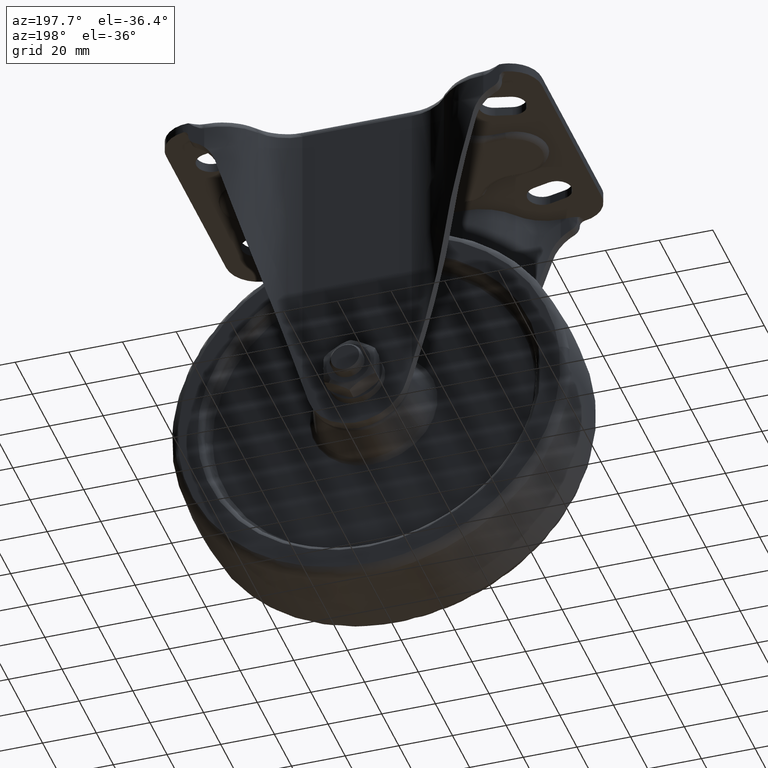
[diagram: clean part render]
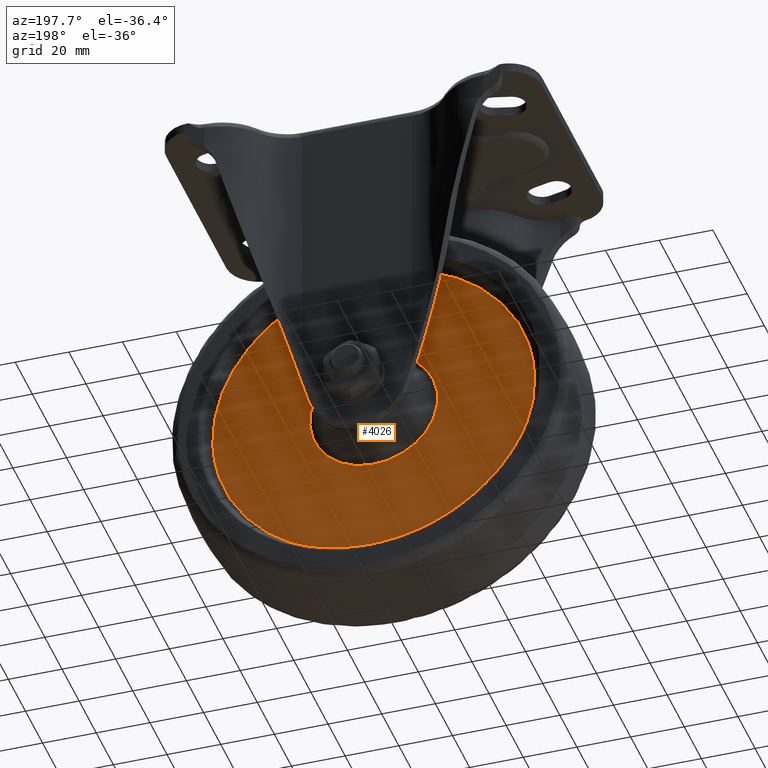
[diagram: same view with one face highlighted and labeled with its STEP entity id]
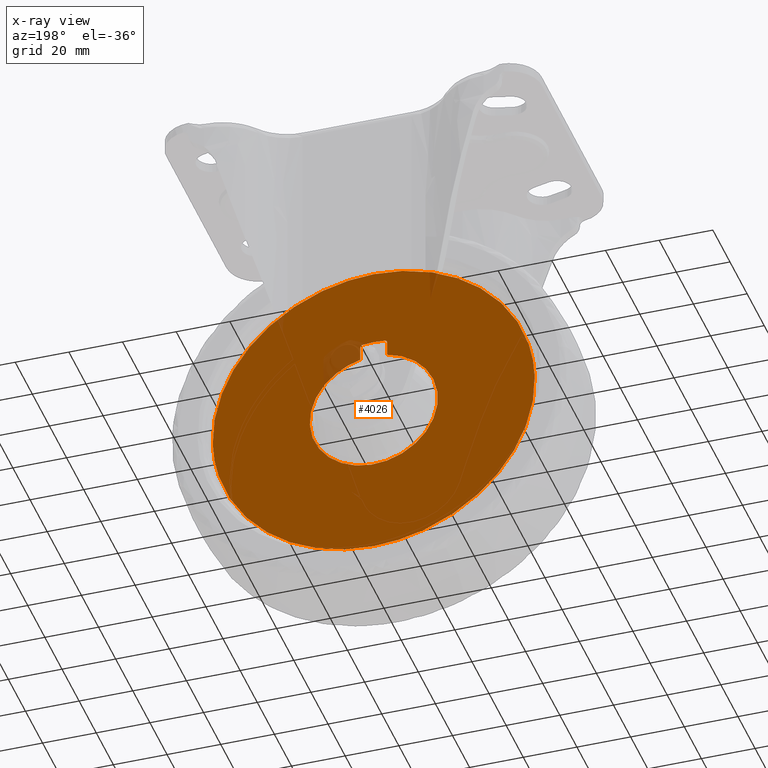
[diagram: x-ray of the same camera — body ghosted, the highlighted face saturated]
A machine part, auxiliary view. The second image highlights one B-rep face of the part: STEP entity #4026.
The next image is the same camera in x-ray: the body ghosted, the highlighted face saturated — about 2% of this face is hidden behind the body in this view.
In plain terms, the highlighted face is a freeform B-spline surface patch.
Its self-contained STEP definition (entity closure, byte-faithful):
#3671=CARTESIAN_POINT('',(-59.981036389527461,12.0,1.507790350903680));
#3672=VERTEX_POINT('',#3671);
#3673=CARTESIAN_POINT('',(0.0,12.0,-60.000000000000050));
#3674=VERTEX_POINT('',#3673);
#3675=CARTESIAN_POINT('',(-59.981036389527461,11.999999999999998,1.507790350903680));
#3676=CARTESIAN_POINT('',(-59.999985027635880,11.999999999999996,0.754006739870146));
#3677=CARTESIAN_POINT('',(-59.999985027461172,12.0,-0.000014999309529));
#3678=CARTESIAN_POINT('',(-59.999985013558138,12.0,-59.999999999659231));
#3679=CARTESIAN_POINT('',(0.0,12.0,-60.000000000000050));
#3687=(BOUNDED_CURVE()B_SPLINE_CURVE(2,(#3675,#3676,#3677,#3678,#3679),.UNSPECIFIED.,.F.,.U.)B_SPLINE_CURVE_WITH_KNOTS((3,2,3),(0.745579891768186,0.750000000000000,1.0),.UNSPECIFIED.)CURVE()GEOMETRIC_REPRESENTATION_ITEM()RATIONAL_B_SPLINE_CURVE((0.989826157677912,0.994821521089921,1.0,0.707106781186547,1.0))REPRESENTATION_ITEM(''));
#3688=EDGE_CURVE('',#3672,#3674,#3687,.T.);
#3690=CARTESIAN_POINT('',(59.981036389527461,12.0,-1.507820350903378));
#3691=VERTEX_POINT('',#3690);
#3692=CARTESIAN_POINT('',(0.0,12.0,-60.000000000000050));
#3693=CARTESIAN_POINT('',(58.510657956531780,12.0,-60.000000000349559));
#3694=CARTESIAN_POINT('',(59.981036389527461,11.999999999999998,-1.507820350903379));
#3702=(BOUNDED_CURVE()B_SPLINE_CURVE(2,(#3692,#3693,#3694),.UNSPECIFIED.,.F.,.U.)B_SPLINE_CURVE_WITH_KNOTS((3,3),(0.0,0.245579891768186),.UNSPECIFIED.)CURVE()GEOMETRIC_REPRESENTATION_ITEM()RATIONAL_B_SPLINE_CURVE((1.0,0.712285260096626,0.989826157677912))REPRESENTATION_ITEM(''));
#3703=EDGE_CURVE('',#3674,#3691,#3702,.T.);
#3766=CARTESIAN_POINT('',(0.0,12.0,59.999970000000353));
#3767=VERTEX_POINT('',#3766);
#3768=CARTESIAN_POINT('',(0.0,12.0,59.999970000000353));
#3769=CARTESIAN_POINT('',(-58.510657956531780,12.0,59.999970000349862));
#3770=CARTESIAN_POINT('',(-59.981036389527461,11.999999999999998,1.507790350903680));
#3778=(BOUNDED_CURVE()B_SPLINE_CURVE(2,(#3768,#3769,#3770),.UNSPECIFIED.,.F.,.U.)B_SPLINE_CURVE_WITH_KNOTS((3,3),(0.500000000000000,0.745579891768186),.UNSPECIFIED.)CURVE()GEOMETRIC_REPRESENTATION_ITEM()RATIONAL_B_SPLINE_CURVE((1.0,0.712285260096626,0.989826157677912))REPRESENTATION_ITEM(''));
#3779=EDGE_CURVE('',#3767,#3672,#3778,.T.);
#3786=CARTESIAN_POINT('',(59.981036389527461,11.999999999999998,-1.507820350903379));
#3787=CARTESIAN_POINT('',(59.999985027635880,12.000000000000007,-0.754036739869844));
#3788=CARTESIAN_POINT('',(59.999985027461172,12.0,-0.000015000690168));
#3789=CARTESIAN_POINT('',(59.999985013558138,12.0,59.999969999659527));
#3790=CARTESIAN_POINT('',(0.0,12.0,59.999970000000353));
#3798=(BOUNDED_CURVE()B_SPLINE_CURVE(2,(#3786,#3787,#3788,#3789,#3790),.UNSPECIFIED.,.F.,.U.)B_SPLINE_CURVE_WITH_KNOTS((3,2,3),(0.245579891768186,0.250000000000000,0.500000000000000),.UNSPECIFIED.)CURVE()GEOMETRIC_REPRESENTATION_ITEM()RATIONAL_B_SPLINE_CURVE((0.989826157677912,0.994821521089921,1.0,0.707106781186547,1.0))REPRESENTATION_ITEM(''));
#3799=EDGE_CURVE('',#3691,#3767,#3798,.T.);
#3848=CARTESIAN_POINT('',(5.0,12.0,23.318089856872799));
#3849=VERTEX_POINT('',#3848);
#3879=CARTESIAN_POINT('',(-5.0,12.0,23.318089856872799));
#3880=VERTEX_POINT('',#3879);
#3881=CARTESIAN_POINT('',(-5.0,12.0,23.318089856872799));
#3882=CARTESIAN_POINT('',(-6.334579831645095,11.999999999999931,23.032038354956970));
#3883=CARTESIAN_POINT('',(-8.517727172689323,12.000000000000080,22.363498470303199));
#3884=CARTESIAN_POINT('',(-11.651058729770201,11.999999999999950,20.887775540565151));
#3885=CARTESIAN_POINT('',(-14.413469362327060,11.999999999999989,19.110218608246861));
#3886=CARTESIAN_POINT('',(-17.224581362093520,11.999999999999980,16.641646848359869));
#3887=CARTESIAN_POINT('',(-19.898765704893840,12.000000000000041,13.401414381551231));
#3888=CARTESIAN_POINT('',(-21.788254511515319,11.999999999999989,9.951375148895552));
#3889=CARTESIAN_POINT('',(-23.067592730105929,12.000000000000011,6.343402058975484));
#3890=CARTESIAN_POINT('',(-23.861003366354659,11.999999999999959,2.499062037289043));
#3891=CARTESIAN_POINT('',(-23.927768785880978,11.999999999999980,-2.077113478431774));
#3892=CARTESIAN_POINT('',(-23.127244689202350,12.000000000000011,-6.205777504631358));
#3893=CARTESIAN_POINT('',(-21.921649220513508,12.0,-9.549670491396419));
#3894=CARTESIAN_POINT('',(-20.429087831231360,12.000000000000011,-12.474398644085110));
#3895=CARTESIAN_POINT('',(-18.570742824283201,12.0,-15.073430720198090));
#3896=CARTESIAN_POINT('',(-16.391445077127930,12.000000000000011,-17.401701076290308));
#3897=CARTESIAN_POINT('',(-14.085934446104631,11.999999999999980,-19.336698955618409));
#3898=CARTESIAN_POINT('',(-10.764964555146660,12.000000000000121,-21.423222791059789));
#3899=CARTESIAN_POINT('',(-6.690425705386956,11.999999999999680,-23.067103721987252));
#3900=CARTESIAN_POINT('',(-2.550850984163650,12.000000000000609,-23.809125428572880));
#3901=CARTESIAN_POINT('',(1.093940896560137,11.999999999998670,-23.892479865889520));
#3902=CARTESIAN_POINT('',(4.450068409306458,12.000000000000600,-23.526139751870350));
#3903=CARTESIAN_POINT('',(8.240218721377314,11.999999999999741,-22.504684589326089));
#3904=CARTESIAN_POINT('',(11.637773850681491,12.000000000000020,-20.925929471537589));
#3905=CARTESIAN_POINT('',(14.744999089859180,12.000000000000201,-18.847614307842701));
#3906=CARTESIAN_POINT('',(17.256104877087679,11.999999999999410,-16.588692317746219));
#3907=CARTESIAN_POINT('',(19.402649330394190,12.000000000000570,-13.984570403485870));
#3908=CARTESIAN_POINT('',(21.188215638398560,12.000000000001950,-11.122365844923840));
#3909=CARTESIAN_POINT('',(22.733050351667512,11.999999999992429,-7.613273304260380));
#3910=CARTESIAN_POINT('',(23.786088599751238,12.000000000004309,-3.258930574953198));
#3911=CARTESIAN_POINT('',(23.937967694222209,11.999999999998490,0.854750381536335));
#3912=CARTESIAN_POINT('',(23.455737501817691,12.000000000000201,4.744129458515845));
#3913=CARTESIAN_POINT('',(22.422085895379340,12.000000000000069,8.532881164209965));
#3914=CARTESIAN_POINT('',(20.531505768593959,11.999999999999980,12.394413861110349));
#3915=CARTESIAN_POINT('',(18.355290451658231,12.0,15.326580571920649));
#3916=CARTESIAN_POINT('',(16.022816901238510,12.0,17.759441640755661));
#3917=CARTESIAN_POINT('',(13.099136157790410,12.0,20.099055297669349));
#3918=CARTESIAN_POINT('',(9.216488586833421,12.0,22.149769644178740));
#3919=CARTESIAN_POINT('',(6.334583962138514,12.0,23.031985808141869));
#3920=CARTESIAN_POINT('',(5.0,12.0,23.318089856872799));
#3921=B_SPLINE_CURVE_WITH_KNOTS('',3,(#3881,#3882,#3883,#3884,#3885,#3886,#3887,#3888,#3889,#3890,#3891,#3892,#3893,#3894,#3895,#3896,#3897,#3898,#3899,#3900,#3901,#3902,#3903,#3904,#3905,#3906,#3907,#3908,#3909,#3910,#3911,#3912,#3913,#3914,#3915,#3916,#3917,#3918,#3919,#3920),.UNSPECIFIED.,.F.,.U.,(4,1,1,1,1,1,1,1,1,1,1,1,1,1,1,1,1,1,1,1,1,1,1,1,1,1,1,1,1,1,1,1,1,1,1,1,1,4),(0.000000518013962,4.094675356768647,6.824536081377858,10.373411308309899,13.922211442525690,18.017020178427732,22.930759414096631,25.660637227922550,29.482432849690650,34.669143416214638,39.309755430964159,42.039619543240548,45.315454625441227,49.137286421975993,51.594165256818833,54.870007423052137,58.145858549656509,63.332542229688400,67.973391445443511,70.703032315633124,74.251869703235570,78.073679959591473,82.441434680689412,85.444305832778184,89.266119754822370,92.541935161841053,95.544816155251937,99.366611526116969,104.007390313750510,108.920997103995800,111.650829215748100,115.745630420513090,120.659364518398310,124.481185237797900,126.665082437067000,130.759846613902000,135.673575937184210,139.768326119426890),.UNSPECIFIED.);
#3922=EDGE_CURVE('',#3880,#3849,#3921,.T.);
#3955=CARTESIAN_POINT('',(-65.993912577785707,12.0,-65.993998268916840));
#3956=CARTESIAN_POINT('',(-65.993912577785707,12.0,65.993971487567165));
#3957=CARTESIAN_POINT('',(65.993916867963762,12.0,-65.993998268916840));
#3958=CARTESIAN_POINT('',(65.993916867963762,12.0,65.993971487567165));
#3959=B_SPLINE_SURFACE_WITH_KNOTS('',1,1,((#3955,#3957),(#3956,#3958)),.UNSPECIFIED.,.F.,.F.,.U.,(2,2),(2,2),(0.0,131.987969756484010),(0.0,131.987829445749500),.UNSPECIFIED.);
#3960=ORIENTED_EDGE('',*,*,#3688,.F.);
#3961=ORIENTED_EDGE('',*,*,#3779,.F.);
#3962=ORIENTED_EDGE('',*,*,#3799,.F.);
#3963=ORIENTED_EDGE('',*,*,#3703,.F.);
#3964=EDGE_LOOP('',(#3960,#3961,#3962,#3963));
#3965=FACE_OUTER_BOUND('',#3964,.T.);
#3966=CARTESIAN_POINT('',(4.999999999999941,12.0,28.722782650934398));
#3967=VERTEX_POINT('',#3966);
#3968=CARTESIAN_POINT('',(4.999999999999941,12.0,28.722782650934398));
#3969=CARTESIAN_POINT('',(5.0,12.0,23.318089856872799));
#3970=QUASI_UNIFORM_CURVE('',1,(#3968,#3969),.UNSPECIFIED.,.F.,.U.);
#3971=EDGE_CURVE('',#3967,#3849,#3970,.T.);
#3972=ORIENTED_EDGE('',*,*,#3971,.F.);
#3973=CARTESIAN_POINT('',(4.137931067367354,12.0,29.713225063720898));
#3974=VERTEX_POINT('',#3973);
#3975=CARTESIAN_POINT('',(4.999999999999940,12.0,28.722782650934398));
#3976=CARTESIAN_POINT('',(5.000000303822915,12.0,29.593171236495170));
#3977=CARTESIAN_POINT('',(4.137931035578930,12.0,29.713224835457648));
#3985=(BOUNDED_CURVE()B_SPLINE_CURVE(2,(#3975,#3976,#3977),.UNSPECIFIED.,.F.,.U.)CURVE()GEOMETRIC_REPRESENTATION_ITEM()QUASI_UNIFORM_CURVE()RATIONAL_B_SPLINE_CURVE((1.0,0.754297915232917,1.0))REPRESENTATION_ITEM(''));
#3986=EDGE_CURVE('',#3967,#3974,#3985,.T.);
#3987=ORIENTED_EDGE('',*,*,#3986,.T.);
#3988=CARTESIAN_POINT('',(-4.137932041139345,12.0,29.713224695420649));
#3989=VERTEX_POINT('',#3988);
#3990=CARTESIAN_POINT('',(4.137931067367360,12.0,29.713225063720881));
#3991=CARTESIAN_POINT('',(-0.000000512531124,12.000000000000004,30.289482212336306));
#3992=CARTESIAN_POINT('',(-4.137932072927843,12.0,29.713224923684368));
#4000=(BOUNDED_CURVE()B_SPLINE_CURVE(2,(#3990,#3991,#3992),.UNSPECIFIED.,.F.,.U.)CURVE()GEOMETRIC_REPRESENTATION_ITEM()QUASI_UNIFORM_CURVE()RATIONAL_B_SPLINE_CURVE((1.0,0.990441833123411,1.0))REPRESENTATION_ITEM(''));
#4001=EDGE_CURVE('',#3974,#3989,#4000,.T.);
#4002=ORIENTED_EDGE('',*,*,#4001,.T.);
#4003=CARTESIAN_POINT('',(-5.0,12.0,28.722783000000302));
#4004=VERTEX_POINT('',#4003);
#4005=CARTESIAN_POINT('',(-4.137932041139344,12.0,29.713224695420649));
#4006=CARTESIAN_POINT('',(-5.0,12.0,29.593170386604399));
#4007=CARTESIAN_POINT('',(-5.0,12.0,28.722783000000302));
#4015=(BOUNDED_CURVE()B_SPLINE_CURVE(2,(#4005,#4006,#4007),.UNSPECIFIED.,.F.,.U.)CURVE()GEOMETRIC_REPRESENTATION_ITEM()QUASI_UNIFORM_CURVE()RATIONAL_B_SPLINE_CURVE((1.0,0.754298363096243,1.0))REPRESENTATION_ITEM(''));
#4016=EDGE_CURVE('',#3989,#4004,#4015,.T.);
#4017=ORIENTED_EDGE('',*,*,#4016,.T.);
#4018=CARTESIAN_POINT('',(-5.0,12.0,23.318089856872799));
#4019=CARTESIAN_POINT('',(-5.0,12.0,28.722783000000302));
#4020=QUASI_UNIFORM_CURVE('',1,(#4018,#4019),.UNSPECIFIED.,.F.,.U.);
#4021=EDGE_CURVE('',#3880,#4004,#4020,.T.);
#4022=ORIENTED_EDGE('',*,*,#4021,.F.);
#4023=ORIENTED_EDGE('',*,*,#3922,.T.);
#4024=EDGE_LOOP('',(#3972,#3987,#4002,#4017,#4022,#4023));
#4025=FACE_BOUND('',#4024,.T.);
#4026=ADVANCED_FACE('',(#3965,#4025),#3959,.T.);